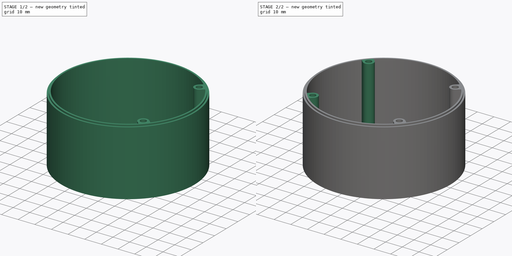
[diagram: build sequence overview — one tinted view per stage of 2, left to right]
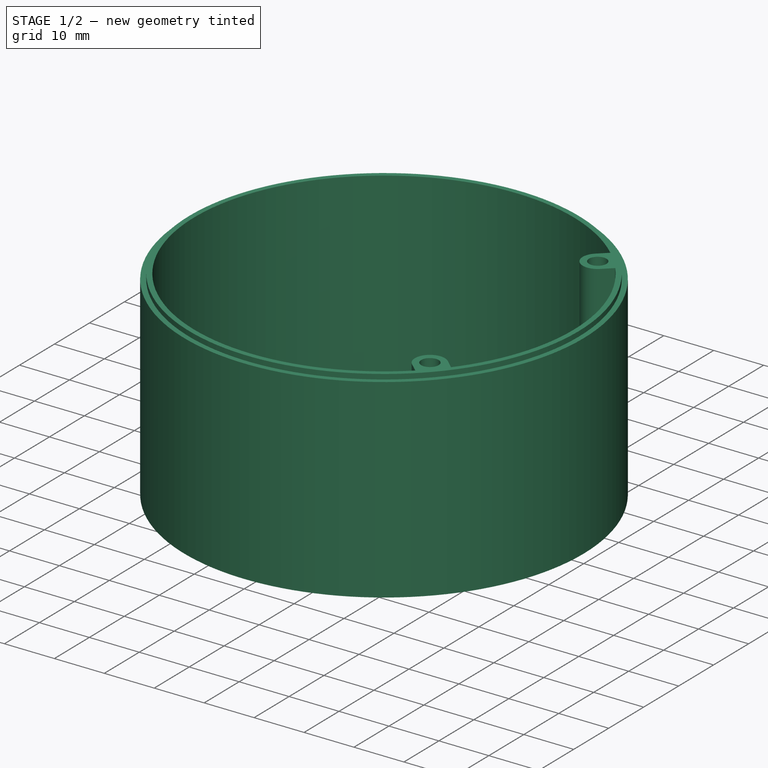
[diagram: stage 1 of 2 — iso view after this stage's code; geometry added in this stage tinted green]
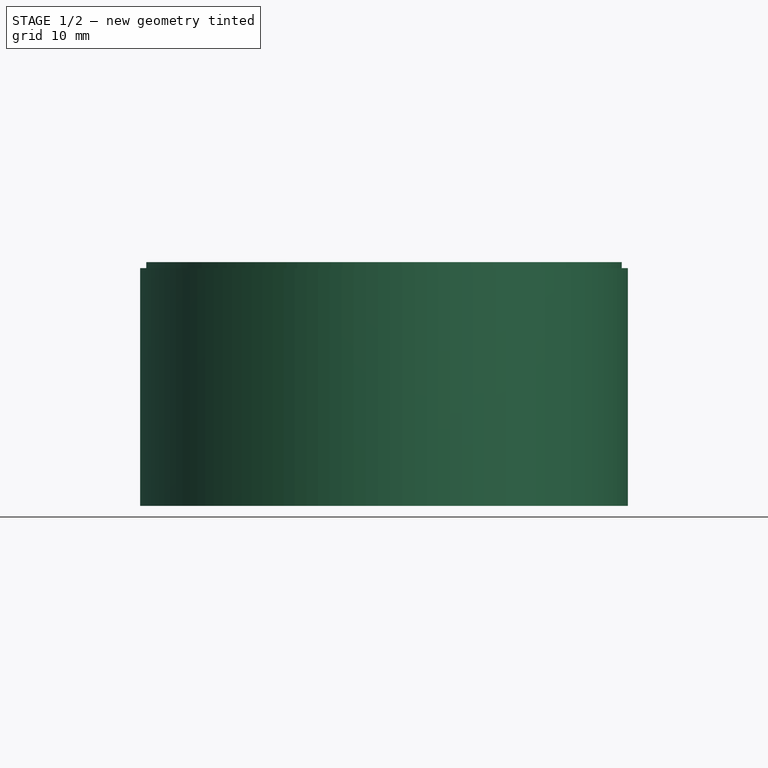
[diagram: stage 1 of 2 — front view after this stage's code; geometry added in this stage tinted green]
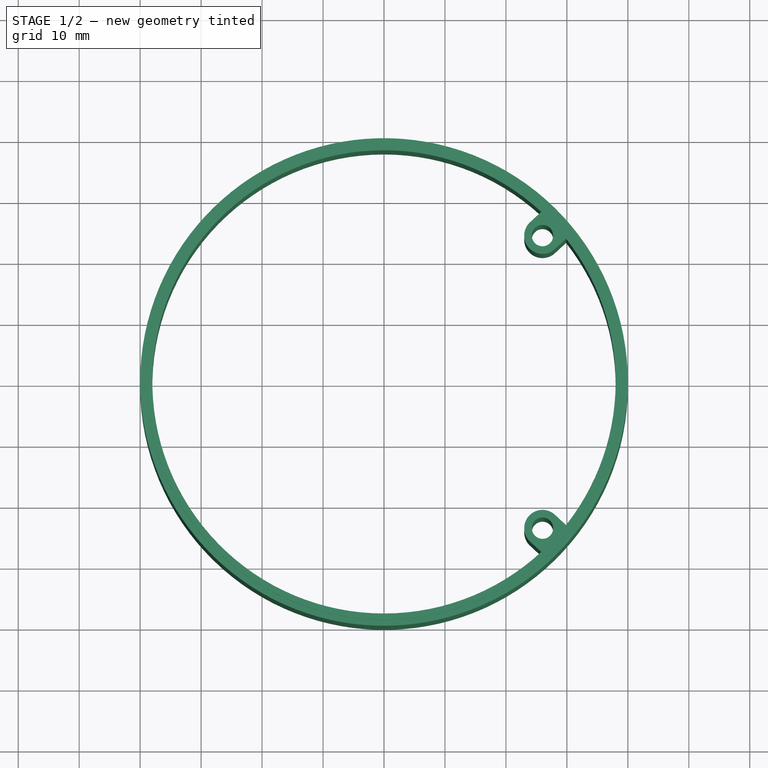
[diagram: stage 1 of 2 — top view after this stage's code; geometry added in this stage tinted green]
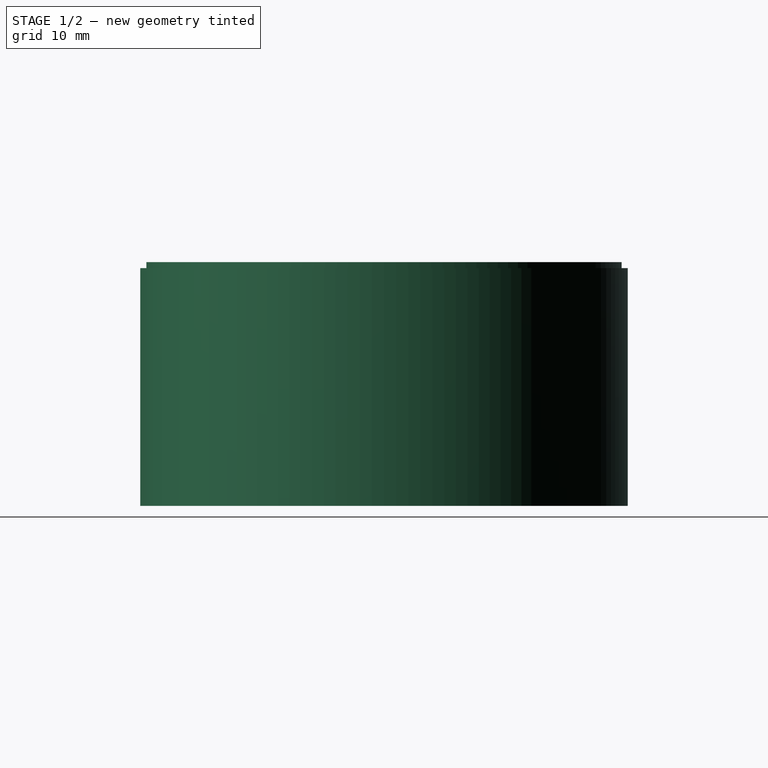
[diagram: stage 1 of 2 — right view after this stage's code; geometry added in this stage tinted green]
FCSTD DOCUMENT  (FreeCAD 0.16RUnknown)
Label: body
License: All rights reserved
LicenseURL: http://en.wikipedia.org/wiki/All_rights_reserved
objects: Sketcher::SketchObject×2, PartDesign::Revolution×1, PartDesign::Pad×1, PartDesign::Mirrored×1
note: 7 computed .brp shape members not serialized (recipe doc carries the construction recipe); baked Part::Feature solids carry a one-line shape summary decoded from their .brp

FEATURE [Sketcher::SketchObject] Sketch
  Placement = pos=(0,0,0) rot=(1,0,0;1.5708rad)
  sketch-geometry (6):
    g0: LineSegment StartX=38 StartY=0 StartZ=0 EndX=38 EndY=40 EndZ=0
    g1: LineSegment StartX=38 StartY=40 StartZ=0 EndX=39 EndY=40 EndZ=0
    g2: LineSegment StartX=39 StartY=40 StartZ=0 EndX=39 EndY=39 EndZ=0
    g3: LineSegment StartX=39 StartY=39 StartZ=0 EndX=40 EndY=39 EndZ=0
    g4: LineSegment StartX=40 StartY=39 StartZ=0 EndX=40 EndY=0 EndZ=0
    g5: LineSegment StartX=40 StartY=0 StartZ=0 EndX=38 EndY=0 EndZ=0
  constraints (18):
    c: PointOnObject(g0,g-1)
    c: Vertical(g0)
    c: Coincident(g0,g1)
    c: Coincident(g1,g2)
    c: Coincident(g2,g3)
    c: Horizontal(g3)
    c: Coincident(g3,g4)
    c: PointOnObject(g4,g-1)
    c: Coincident(g4,g5)
    c: Coincident(g5,g0)
    c: Vertical(g4)
    c: DistanceX(g-1,g4) = 40
    c: DistanceX(g5,g5) = 2
    c: Horizontal(g1)
    c: Vertical(g2)
    c: DistanceY(g0,g0) = 40
    c: DistanceY(g2,g2) = 1
    c: DistanceX(g3,g3) = 1
FEATURE [PartDesign::Revolution] Revolution
  Angle = 360
  Axis = (0,0,1)
  Base = (0,0,0)
  Placement = pos=(0,0,0) rot=(1,0,0;1.5708rad)
  ReferenceAxis = -> Sketch [V_Axis]
  Reversed = true
  Sketch = -> Sketch
FEATURE [Sketcher::SketchObject] Sketch001
  ExternalGeometry = -> [Revolution]
  Placement = pos=(0,0,0) rot=(1,0,0;3.14159rad)
  Support = -> Revolution [Face6]
  sketch-geometry (16):
    g0: Circle CenterX=26 CenterY=24 CenterZ=0 NormalX=0 NormalY=0 NormalZ=1 Radius=1.75
    g1: Circle CenterX=26 CenterY=-24 CenterZ=0 NormalX=0 NormalY=0 NormalZ=1 Radius=1.75
    g2: LineSegment [constr] StartX=26 StartY=24 StartZ=0 EndX=26 EndY=-24 EndZ=0
    g3: ArcOfCircle CenterX=26 CenterY=24 CenterZ=0 NormalX=0 NormalY=0 NormalZ=1 Radius=3 StartAngle=2.31622 EndAngle=5.45781
    g4: LineSegment [constr] StartX=23.9652 StartY=26.2044 StartZ=0 EndX=28.0348 EndY=21.7956 EndZ=0
    g5: LineSegment StartX=28.0348 StartY=21.7956 StartZ=0 EndX=29.9574 EndY=23.5702 EndZ=0
    g6: LineSegment StartX=29.9574 StartY=23.5702 StartZ=0 EndX=25.8877 EndY=27.9791 EndZ=0
    g7: LineSegment StartX=25.8877 StartY=27.9791 StartZ=0 EndX=23.9652 EndY=26.2044 EndZ=0
    g8: ArcOfCircle CenterX=26 CenterY=-24 CenterZ=0 NormalX=0 NormalY=0 NormalZ=1 Radius=3 StartAngle=0.825377 EndAngle=3.96697
    g9: LineSegment StartX=28.0348 StartY=-21.7956 StartZ=0 EndX=29.9574 EndY=-23.5702 EndZ=0
    g10: LineSegment StartX=29.9574 StartY=-23.5702 StartZ=0 EndX=25.8877 EndY=-27.9791 EndZ=0
    g11: LineSegment StartX=25.8877 StartY=-27.9791 StartZ=0 EndX=23.9652 EndY=-26.2044 EndZ=0
    g12: LineSegment [constr] StartX=23.9652 StartY=-26.2044 StartZ=0 EndX=28.0348 EndY=-21.7956 EndZ=0
    g13: GeomPoint [constr] X=27.9225 Y=-25.7746 Z=0
    g14: LineSegment [constr] StartX=26 StartY=-24 StartZ=0 EndX=27.9225 EndY=-25.7746 EndZ=0
    g15: LineSegment [constr] StartX=26 StartY=24 StartZ=0 EndX=27.9225 EndY=25.7746 EndZ=0
  constraints (42):
    c: Equal(g0,g1)
    c: Coincident(g2,g0)
    c: Coincident(g2,g1)
    c: Vertical(g2)
    c: Radius(g1) = 1.75
    c: DistanceY(g2,g2) = 48
    c: Distance(g-1,g2) = 26
    c: Symmetric(g0,g1,g-1)
    c: Coincident(g3,g0)
    c: Coincident(g4,g3)
    c: Coincident(g4,g3)
    c: Coincident(g5,g3)
    c: Coincident(g6,g5)
    c: Coincident(g7,g6)
    c: Coincident(g7,g3)
    c: PointOnObject(g0,g4)
    c: Parallel(g5,g7)
    c: Equal(g7,g5)
    c: Perpendicular(g5,g4)
    c: Distance(g4) = 6
    c: Coincident(g8,g1)
    c: Tangent(g8,g9) = 1.5708
    c: Coincident(g9,g10)
    c: Coincident(g10,g11)
    c: Coincident(g11,g8)
    c: Coincident(g11,g12)
    c: Coincident(g12,g8)
    c: PointOnObject(g1,g12)
    c: Perpendicular(g12,g11)
    c: Distance(g12) = 6
    c: PointOnObject(g13,g10)
    c: Symmetric(g9,g10,g13)
    c: PointOnObject(g13,g-3)
    c: Equal(g9,g11)
    c: Coincident(g14,g1)
    c: Coincident(g14,g13)
    c: Perpendicular(g-3,g14)
    c: Coincident(g15,g0)
    c: PointOnObject(g15,g-3)
    c: PointOnObject(g15,g6)
    c: Perpendicular(g-3,g15)
    c: Symmetric(g5,g6,g15)
FEATURE [PartDesign::Pad] Pad
  Length = 10
  Length2 = 100
  Placement = pos=(0,0,0) rot=(1,0,0;1.5708rad)
  Sketch = -> Sketch001
  Type = 3
  UpToFace = -> Revolution [Face2]
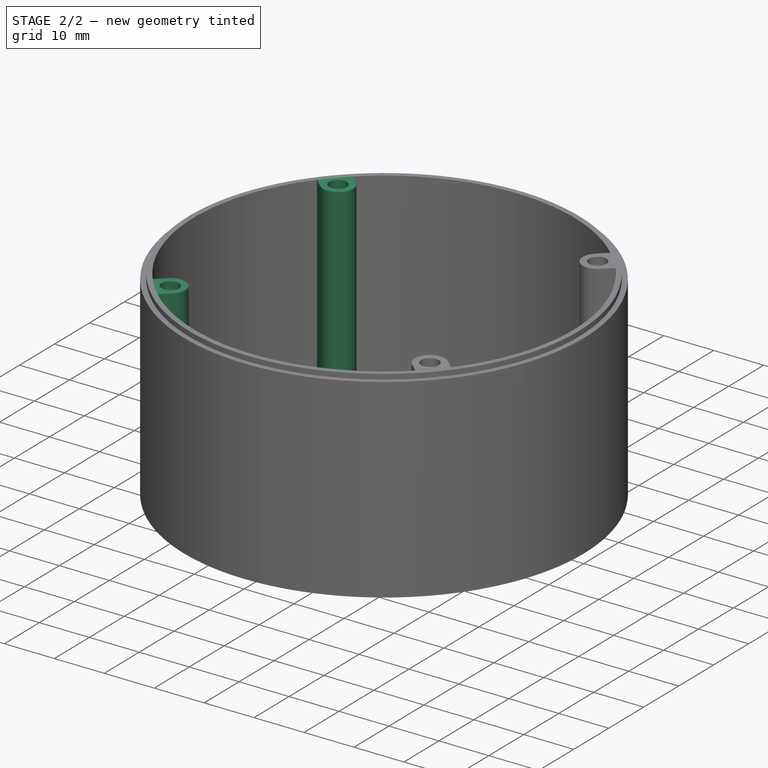
[diagram: stage 2 of 2 — iso view after this stage's code; geometry added in this stage tinted green]
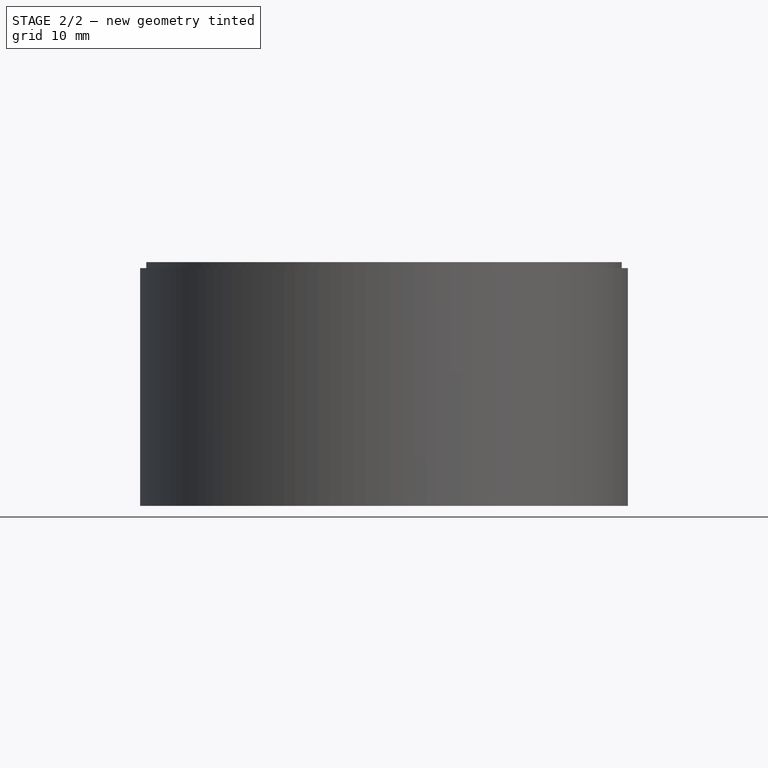
[diagram: stage 2 of 2 — front view after this stage's code; geometry added in this stage tinted green]
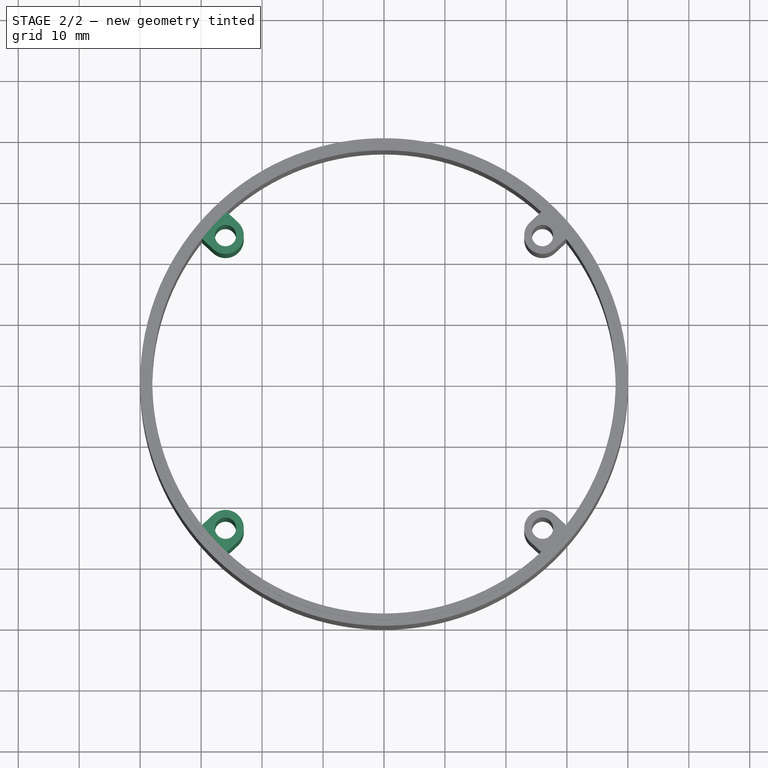
[diagram: stage 2 of 2 — top view after this stage's code; geometry added in this stage tinted green]
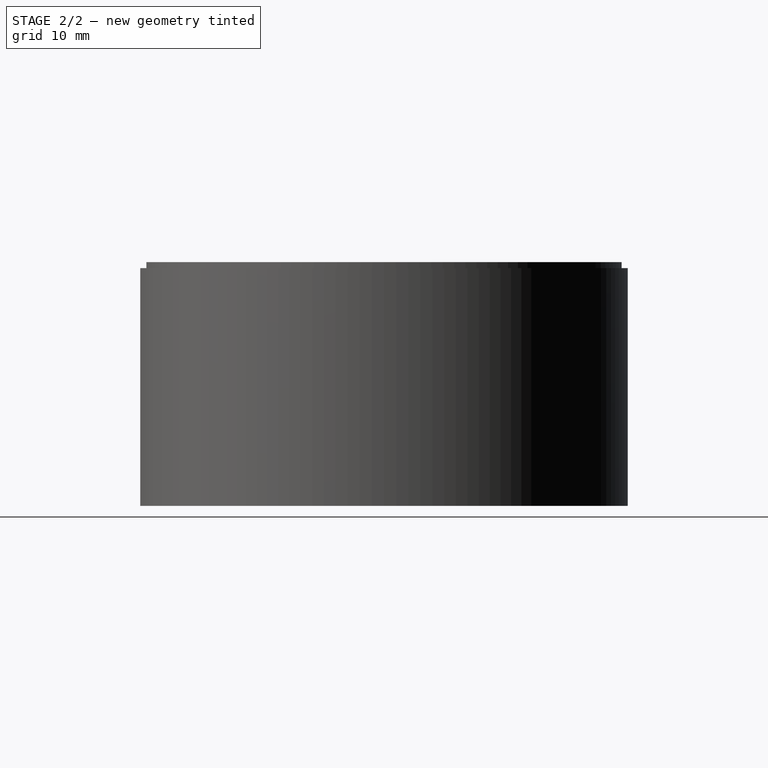
[diagram: stage 2 of 2 — right view after this stage's code; geometry added in this stage tinted green]
FEATURE [PartDesign::Mirrored] Mirrored
  MirrorPlane = -> Sketch001 [V_Axis]
  Originals = -> [Pad]
  Placement = pos=(0,0,0) rot=(1,0,0;1.5708rad)
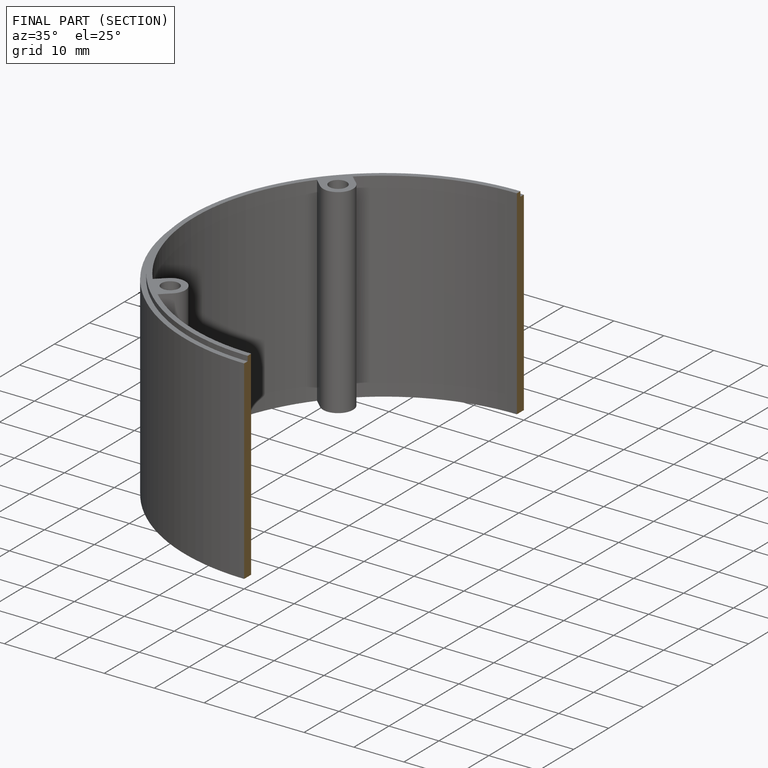
[diagram: finished part — half-section view (interior)]
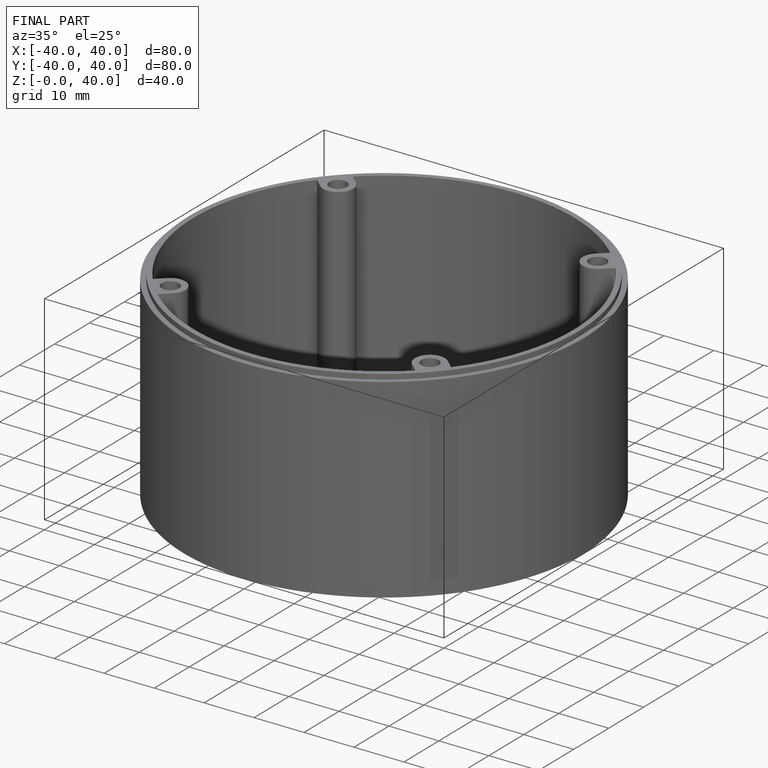
[diagram: finished part — iso view with bounding-box wireframe]
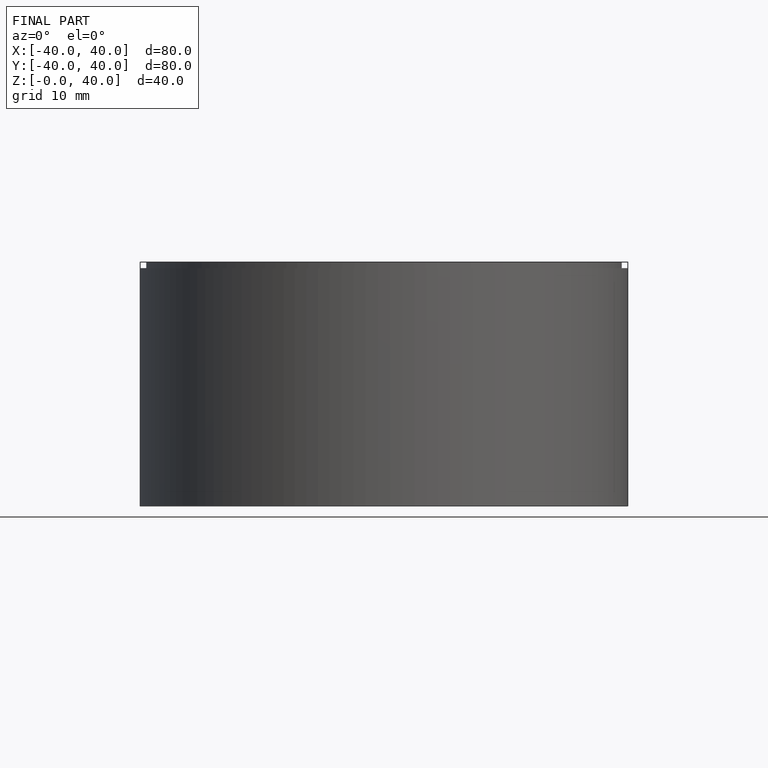
[diagram: finished part — front view with bounding-box wireframe]
